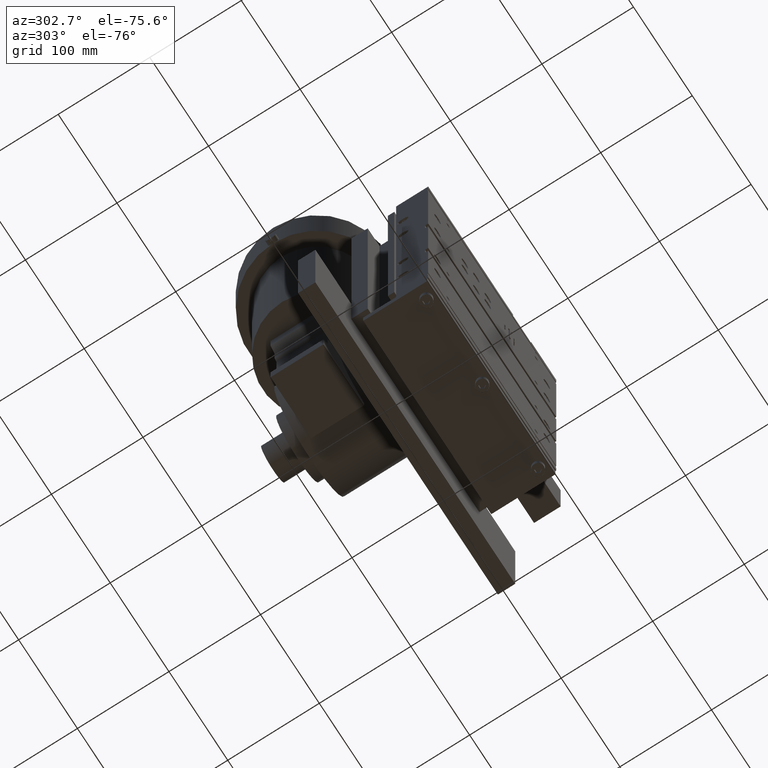
[diagram: clean part render]
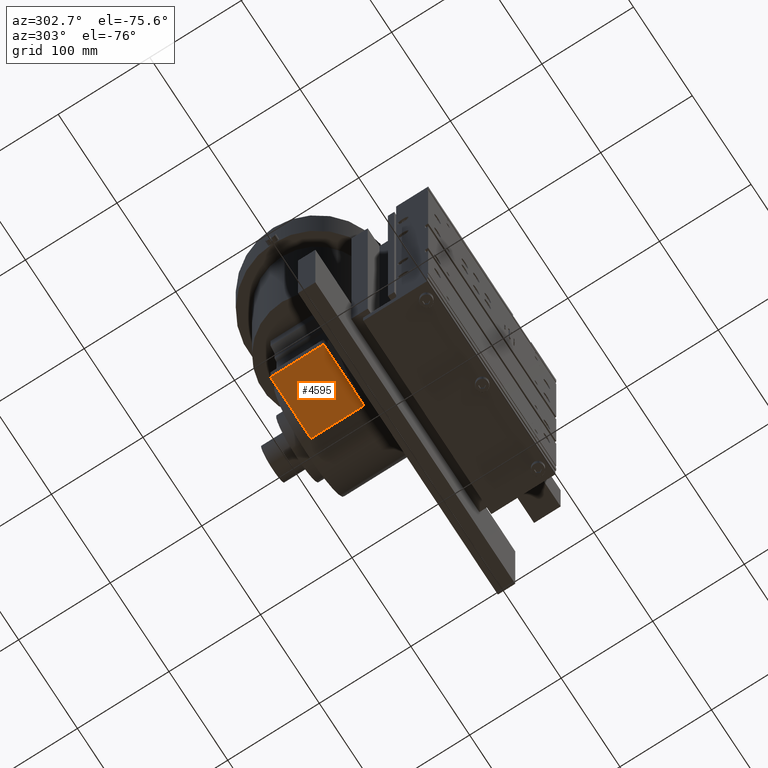
[diagram: same view with one face highlighted and labeled with its STEP entity id]
A machine part, auxiliary view. The second image highlights one B-rep face of the part: STEP entity #4595.
In plain terms, the highlighted planar face has unit normal (-0, 0, 1).
Its self-contained STEP definition (entity closure, byte-faithful):
#4595=ADVANCED_FACE('',(#10074),#10075,.F.);
#10074=FACE_OUTER_BOUND('',#18518,.T.);
#10075=PLANE('',#18519);
#18518=EDGE_LOOP('',(#29215,#29216,#29217,#29218));
#18519=AXIS2_PLACEMENT_3D('',#29219,#29220,#29221);
#29215=ORIENTED_EDGE('',*,*,#49242,.T.);
#29216=ORIENTED_EDGE('',*,*,#48773,.F.);
#29217=ORIENTED_EDGE('',*,*,#49243,.F.);
#29218=ORIENTED_EDGE('',*,*,#49244,.T.);
#29219=CARTESIAN_POINT('',(-50.4692592498323,-65.4494847866441,-675.967946454535));
#29220=DIRECTION('',(-6.12323399573677E-017,0.000000000000000,1.00000000000000));
#29221=DIRECTION('',(-1.00000000000000,0.000000000000000,-6.12323399573677E-017));
#48773=EDGE_CURVE('',#57463,#57465,#57466,.T.);
#49242=EDGE_CURVE('',#58282,#57465,#58283,.T.);
#49243=EDGE_CURVE('',#58284,#57463,#58285,.T.);
#49244=EDGE_CURVE('',#58284,#58282,#58286,.T.);
#57463=VERTEX_POINT('',#70116);
#57465=VERTEX_POINT('',#70119);
#57466=LINE('',#70120,#70121);
#58282=VERTEX_POINT('',#71292);
#58283=LINE('',#71293,#71294);
#58284=VERTEX_POINT('',#71295);
#58285=LINE('',#71296,#71297);
#58286=LINE('',#71298,#71299);
#70116=CARTESIAN_POINT('',(18.5307407501678,-65.4494847866441,-675.967946454535));
#70119=CARTESIAN_POINT('',(18.5307407501678,-7.44948478664413,-675.967946454535));
#70120=CARTESIAN_POINT('',(18.5307407501678,-65.4494847866441,-675.967946454535));
#70121=VECTOR('',#86417,1.00000000000000);
#71292=CARTESIAN_POINT('',(-50.4692592498323,-7.44948478664413,-675.967946454535));
#71293=CARTESIAN_POINT('',(-50.4692592498323,-7.44948478664413,-675.967946454535));
#71294=VECTOR('',#86858,1.00000000000000);
#71295=CARTESIAN_POINT('',(-50.4692592498323,-65.4494847866441,-675.967946454535));
#71296=CARTESIAN_POINT('',(-50.4692592498323,-65.4494847866441,-675.967946454535));
#71297=VECTOR('',#86859,1.00000000000000);
#71298=CARTESIAN_POINT('',(-50.4692592498323,-65.4494847866441,-675.967946454535));
#71299=VECTOR('',#86860,1.00000000000000);
#86417=DIRECTION('',(0.000000000000000,1.00000000000000,0.000000000000000));
#86858=DIRECTION('',(1.00000000000000,0.000000000000000,6.12323399573677E-017));
#86859=DIRECTION('',(1.00000000000000,0.000000000000000,6.12323399573677E-017));
#86860=DIRECTION('',(0.000000000000000,1.00000000000000,0.000000000000000));